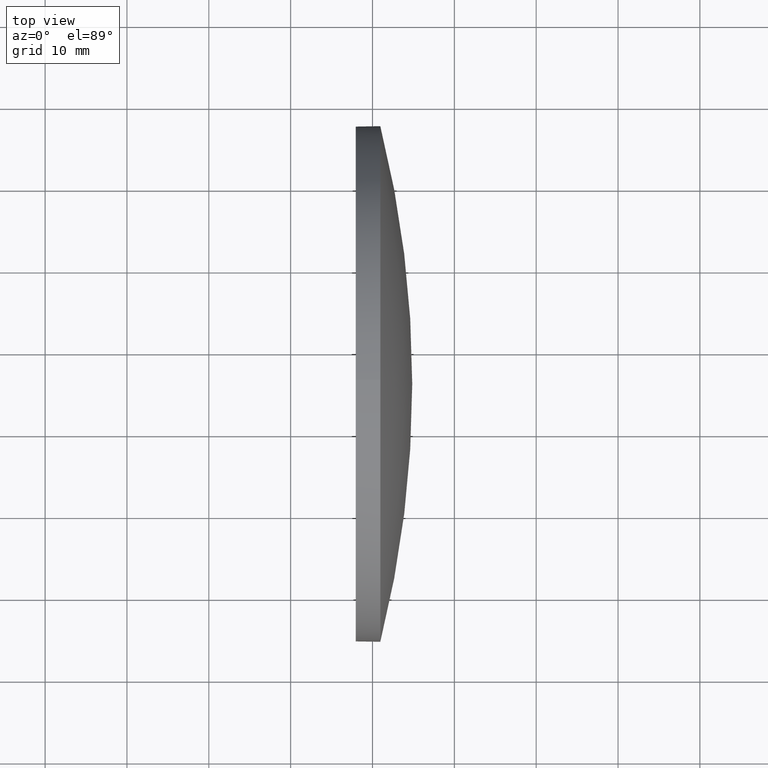
[diagram: clean part render]
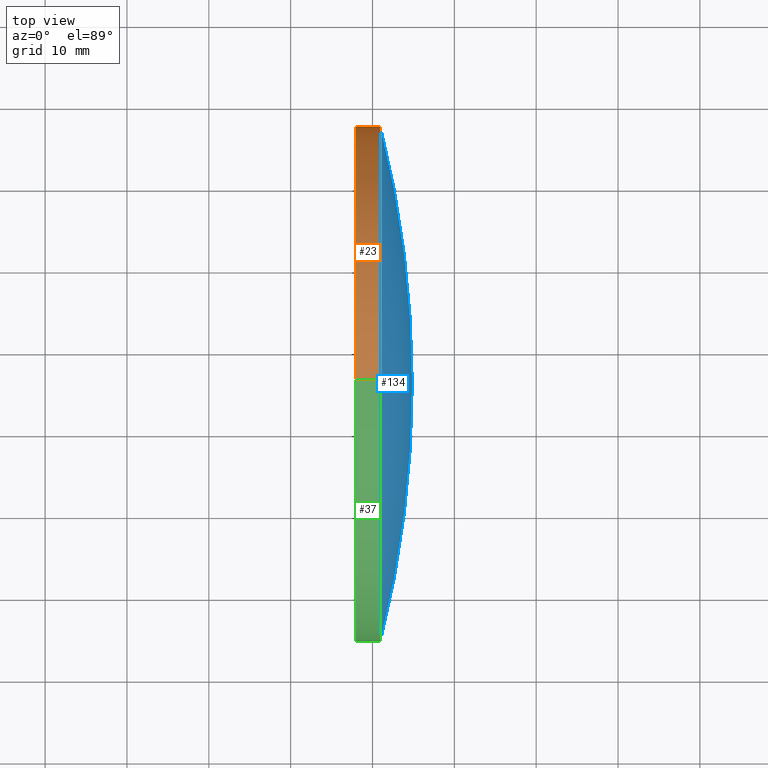
[diagram: same view with three faces highlighted in distinct colors, each labeled with its STEP entity id]
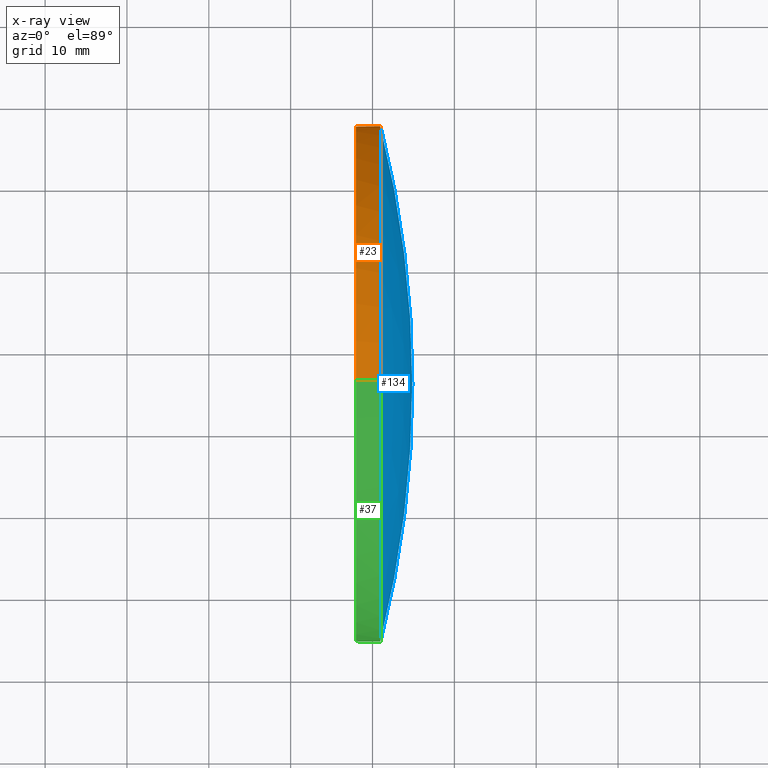
[diagram: x-ray of the same camera — body ghosted, the three highlighted faces saturated]
A machine part, top view with three faces highlighted in distinct colors.
The next image is the same camera in x-ray (body ghosted, the three faces saturated) — at least one of them is partly hidden behind the body in this view.
Their STEP definitions:

[orange] entity #23 — the highlighted cylindrical surface (partial cylindrical patch) has radius 31.5 mm, axis along (-1, -0, -0).
#2 = CIRCLE ( 'NONE', #133, 31.50000000000000000 ) ;
#4 = CARTESIAN_POINT ( 'NONE',  ( 519.9833742792245600, -64.13054328457161500, 31.50000000000000000 ) ) ;
#5 = EDGE_CURVE ( 'NONE', #148, #172, #102, .T. ) ;
#11 = AXIS2_PLACEMENT_3D ( 'NONE', #167, #17, #153 ) ;
#12 = FACE_OUTER_BOUND ( 'NONE', #52, .T. ) ;
#14 = CIRCLE ( 'NONE', #36, 31.50000000000000000 ) ;
#16 = DIRECTION ( 'NONE',  ( -1.000000000000000000, -0.0000000000000000000, -0.0000000000000000000 ) ) ;
#17 = DIRECTION ( 'NONE',  ( -1.000000000000000000, -0.0000000000000000000, -0.0000000000000000000 ) ) ;
#22 = VERTEX_POINT ( 'NONE', #73 ) ;
#23 = ADVANCED_FACE ( 'NONE', ( #12 ), #174, .T. ) ;
#25 = VERTEX_POINT ( 'NONE', #60 ) ;
#27 = CARTESIAN_POINT ( 'NONE',  ( 530.9541059465552700, -64.13054328457161500, 0.0000000000000000000 ) ) ;
#28 = ORIENTED_EDGE ( 'NONE', *, *, #101, .T. ) ;
#31 = CARTESIAN_POINT ( 'NONE',  ( 530.9541059465552700, -64.13054328457161500, 0.0000000000000000000 ) ) ;
#36 = AXIS2_PLACEMENT_3D ( 'NONE', #27, #111, #76 ) ;
#42 = LINE ( 'NONE', #181, #105 ) ;
#44 = CARTESIAN_POINT ( 'NONE',  ( 530.9541059465552700, -64.13054328457161500, -31.50000000000000000 ) ) ;
#50 = DIRECTION ( 'NONE',  ( -1.000000000000000000, -0.0000000000000000000, -0.0000000000000000000 ) ) ;
#52 = EDGE_LOOP ( 'NONE', ( #176, #115, #152, #125, #28 ) ) ;
#59 = CARTESIAN_POINT ( 'NONE',  ( 530.9541059465552700, -64.13054328457161500, 31.50000000000000000 ) ) ;
#60 = CARTESIAN_POINT ( 'NONE',  ( 527.9541059465552700, -64.13054328457161500, -31.50000000000000000 ) ) ;
#61 = AXIS2_PLACEMENT_3D ( 'NONE', #31, #50, #161 ) ;
#73 = CARTESIAN_POINT ( 'NONE',  ( 530.9541059465552700, -32.63054328457162300, 0.0000000000000000000 ) ) ;
#75 = DIRECTION ( 'NONE',  ( -1.000000000000000000, -0.0000000000000000000, -0.0000000000000000000 ) ) ;
#76 = DIRECTION ( 'NONE',  ( 0.0000000000000000000, 0.0000000000000000000, 1.000000000000000000 ) ) ;
#97 = CARTESIAN_POINT ( 'NONE',  ( 527.9541059465552700, -64.13054328457161500, 31.50000000000000000 ) ) ;
#101 = EDGE_CURVE ( 'NONE', #148, #22, #14, .T. ) ;
#102 = LINE ( 'NONE', #4, #156 ) ;
#104 = EDGE_CURVE ( 'NONE', #142, #25, #42, .T. ) ;
#105 = VECTOR ( 'NONE', #75, 1000.000000000000000 ) ;
#106 = CARTESIAN_POINT ( 'NONE',  ( 527.9541059465552700, -64.13054328457161500, 0.0000000000000000000 ) ) ;
#109 = DIRECTION ( 'NONE',  ( -1.000000000000000000, -0.0000000000000000000, -0.0000000000000000000 ) ) ;
#111 = DIRECTION ( 'NONE',  ( -1.000000000000000000, -0.0000000000000000000, -0.0000000000000000000 ) ) ;
#115 = ORIENTED_EDGE ( 'NONE', *, *, #104, .T. ) ;
#118 = CIRCLE ( 'NONE', #61, 31.50000000000000000 ) ;
#120 = EDGE_CURVE ( 'NONE', #172, #25, #2, .T. ) ;
#125 = ORIENTED_EDGE ( 'NONE', *, *, #5, .F. ) ;
#126 = DIRECTION ( 'NONE',  ( 0.0000000000000000000, 0.0000000000000000000, 1.000000000000000000 ) ) ;
#133 = AXIS2_PLACEMENT_3D ( 'NONE', #106, #16, #126 ) ;
#142 = VERTEX_POINT ( 'NONE', #44 ) ;
#148 = VERTEX_POINT ( 'NONE', #59 ) ;
#152 = ORIENTED_EDGE ( 'NONE', *, *, #120, .F. ) ;
#153 = DIRECTION ( 'NONE',  ( 0.0000000000000000000, 0.0000000000000000000, 1.000000000000000000 ) ) ;
#156 = VECTOR ( 'NONE', #109, 1000.000000000000000 ) ;
#161 = DIRECTION ( 'NONE',  ( 0.0000000000000000000, 0.0000000000000000000, 1.000000000000000000 ) ) ;
#167 = CARTESIAN_POINT ( 'NONE',  ( 519.9833742792245600, -64.13054328457161500, 0.0000000000000000000 ) ) ;
#172 = VERTEX_POINT ( 'NONE', #97 ) ;
#174 = CYLINDRICAL_SURFACE ( 'NONE', #11, 31.50000000000000000 ) ;
#176 = ORIENTED_EDGE ( 'NONE', *, *, #177, .T. ) ;
#177 = EDGE_CURVE ( 'NONE', #22, #142, #118, .T. ) ;
#181 = CARTESIAN_POINT ( 'NONE',  ( 519.9833742792245600, -64.13054328457161500, -31.50000000000000000 ) ) ;

[blue] entity #134 — the highlighted spherical surface has radius 129.161 mm.
#3 = EDGE_LOOP ( 'NONE', ( #139, #184, #10, #58 ) ) ;
#6 = CARTESIAN_POINT ( 'NONE',  ( 530.9541059465552700, -95.63054328457163000, -3.857637417314161900E-015 ) ) ;
#10 = ORIENTED_EDGE ( 'NONE', *, *, #101, .F. ) ;
#14 = CIRCLE ( 'NONE', #36, 31.50000000000000000 ) ;
#15 = DIRECTION ( 'NONE',  ( -0.0000000000000000000, 0.0000000000000000000, -1.000000000000000000 ) ) ;
#18 = CARTESIAN_POINT ( 'NONE',  ( 534.8541059465552500, -64.13054328457161500, 0.0000000000000000000 ) ) ;
#19 = CARTESIAN_POINT ( 'NONE',  ( 405.6925674850170400, -64.13054328457163000, 0.0000000000000000000 ) ) ;
#22 = VERTEX_POINT ( 'NONE', #73 ) ;
#27 = CARTESIAN_POINT ( 'NONE',  ( 530.9541059465552700, -64.13054328457161500, 0.0000000000000000000 ) ) ;
#35 = FACE_OUTER_BOUND ( 'NONE', #3, .T. ) ;
#36 = AXIS2_PLACEMENT_3D ( 'NONE', #27, #111, #76 ) ;
#48 = CARTESIAN_POINT ( 'NONE',  ( 405.6925674850170400, -64.13054328457163000, 0.0000000000000000000 ) ) ;
#49 = DIRECTION ( 'NONE',  ( -1.000000000000000000, -0.0000000000000000000, -0.0000000000000000000 ) ) ;
#53 = AXIS2_PLACEMENT_3D ( 'NONE', #48, #62, #168 ) ;
#58 = ORIENTED_EDGE ( 'NONE', *, *, #185, .F. ) ;
#59 = CARTESIAN_POINT ( 'NONE',  ( 530.9541059465552700, -64.13054328457161500, 31.50000000000000000 ) ) ;
#62 = DIRECTION ( 'NONE',  ( 0.0000000000000000000, 1.224646799147353200E-016, -1.000000000000000000 ) ) ;
#70 = CIRCLE ( 'NONE', #108, 129.1615384615382100 ) ;
#72 = EDGE_CURVE ( 'NONE', #99, #22, #70, .T. ) ;
#73 = CARTESIAN_POINT ( 'NONE',  ( 530.9541059465552700, -32.63054328457162300, 0.0000000000000000000 ) ) ;
#76 = DIRECTION ( 'NONE',  ( 0.0000000000000000000, 0.0000000000000000000, 1.000000000000000000 ) ) ;
#80 = SPHERICAL_SURFACE ( 'NONE', #141, 129.1615384615382100 ) ;
#90 = DIRECTION ( 'NONE',  ( -0.0000000000000000000, 0.0000000000000000000, 1.000000000000000000 ) ) ;
#93 = EDGE_CURVE ( 'NONE', #99, #107, #124, .T. ) ;
#96 = CARTESIAN_POINT ( 'NONE',  ( 530.9541059465552700, -64.13054328457161500, 0.0000000000000000000 ) ) ;
#99 = VERTEX_POINT ( 'NONE', #18 ) ;
#101 = EDGE_CURVE ( 'NONE', #148, #22, #14, .T. ) ;
#103 = CIRCLE ( 'NONE', #137, 31.50000000000000000 ) ;
#107 = VERTEX_POINT ( 'NONE', #6 ) ;
#108 = AXIS2_PLACEMENT_3D ( 'NONE', #19, #90, #144 ) ;
#111 = DIRECTION ( 'NONE',  ( -1.000000000000000000, -0.0000000000000000000, -0.0000000000000000000 ) ) ;
#124 = CIRCLE ( 'NONE', #53, 129.1615384615382100 ) ;
#134 = ADVANCED_FACE ( 'NONE', ( #35 ), #80, .T. ) ;
#137 = AXIS2_PLACEMENT_3D ( 'NONE', #96, #49, #173 ) ;
#139 = ORIENTED_EDGE ( 'NONE', *, *, #93, .F. ) ;
#140 = DIRECTION ( 'NONE',  ( 0.0000000000000000000, 1.000000000000000000, 0.0000000000000000000 ) ) ;
#141 = AXIS2_PLACEMENT_3D ( 'NONE', #179, #15, #140 ) ;
#144 = DIRECTION ( 'NONE',  ( 1.000000000000000000, 0.0000000000000000000, 0.0000000000000000000 ) ) ;
#148 = VERTEX_POINT ( 'NONE', #59 ) ;
#168 = DIRECTION ( 'NONE',  ( 0.0000000000000000000, 1.000000000000000000, 1.224646799147353000E-016 ) ) ;
#173 = DIRECTION ( 'NONE',  ( 0.0000000000000000000, 0.0000000000000000000, 1.000000000000000000 ) ) ;
#179 = CARTESIAN_POINT ( 'NONE',  ( 405.6925674850170400, -64.13054328457163000, 0.0000000000000000000 ) ) ;
#184 = ORIENTED_EDGE ( 'NONE', *, *, #72, .T. ) ;
#185 = EDGE_CURVE ( 'NONE', #107, #148, #103, .T. ) ;

[green] entity #37 — the highlighted cylindrical surface (partial cylindrical patch) has radius 31.5 mm, axis along (-1, -0, -0).
#4 = CARTESIAN_POINT ( 'NONE',  ( 519.9833742792245600, -64.13054328457161500, 31.50000000000000000 ) ) ;
#5 = EDGE_CURVE ( 'NONE', #148, #172, #102, .T. ) ;
#6 = CARTESIAN_POINT ( 'NONE',  ( 530.9541059465552700, -95.63054328457163000, -3.857637417314161900E-015 ) ) ;
#25 = VERTEX_POINT ( 'NONE', #60 ) ;
#32 = CIRCLE ( 'NONE', #41, 31.50000000000000000 ) ;
#37 = ADVANCED_FACE ( 'NONE', ( #98 ), #117, .T. ) ;
#40 = ORIENTED_EDGE ( 'NONE', *, *, #5, .T. ) ;
#41 = AXIS2_PLACEMENT_3D ( 'NONE', #110, #157, #158 ) ;
#42 = LINE ( 'NONE', #181, #105 ) ;
#44 = CARTESIAN_POINT ( 'NONE',  ( 530.9541059465552700, -64.13054328457161500, -31.50000000000000000 ) ) ;
#49 = DIRECTION ( 'NONE',  ( -1.000000000000000000, -0.0000000000000000000, -0.0000000000000000000 ) ) ;
#51 = CIRCLE ( 'NONE', #57, 31.50000000000000000 ) ;
#57 = AXIS2_PLACEMENT_3D ( 'NONE', #114, #183, #64 ) ;
#59 = CARTESIAN_POINT ( 'NONE',  ( 530.9541059465552700, -64.13054328457161500, 31.50000000000000000 ) ) ;
#60 = CARTESIAN_POINT ( 'NONE',  ( 527.9541059465552700, -64.13054328457161500, -31.50000000000000000 ) ) ;
#64 = DIRECTION ( 'NONE',  ( 0.0000000000000000000, 0.0000000000000000000, 1.000000000000000000 ) ) ;
#71 = ORIENTED_EDGE ( 'NONE', *, *, #86, .T. ) ;
#75 = DIRECTION ( 'NONE',  ( -1.000000000000000000, -0.0000000000000000000, -0.0000000000000000000 ) ) ;
#81 = ORIENTED_EDGE ( 'NONE', *, *, #150, .F. ) ;
#85 = EDGE_LOOP ( 'NONE', ( #186, #71, #119, #40, #81 ) ) ;
#86 = EDGE_CURVE ( 'NONE', #142, #107, #32, .T. ) ;
#91 = DIRECTION ( 'NONE',  ( -1.000000000000000000, -0.0000000000000000000, -0.0000000000000000000 ) ) ;
#95 = DIRECTION ( 'NONE',  ( 0.0000000000000000000, 0.0000000000000000000, 1.000000000000000000 ) ) ;
#96 = CARTESIAN_POINT ( 'NONE',  ( 530.9541059465552700, -64.13054328457161500, 0.0000000000000000000 ) ) ;
#97 = CARTESIAN_POINT ( 'NONE',  ( 527.9541059465552700, -64.13054328457161500, 31.50000000000000000 ) ) ;
#98 = FACE_OUTER_BOUND ( 'NONE', #85, .T. ) ;
#102 = LINE ( 'NONE', #4, #156 ) ;
#103 = CIRCLE ( 'NONE', #137, 31.50000000000000000 ) ;
#104 = EDGE_CURVE ( 'NONE', #142, #25, #42, .T. ) ;
#105 = VECTOR ( 'NONE', #75, 1000.000000000000000 ) ;
#107 = VERTEX_POINT ( 'NONE', #6 ) ;
#109 = DIRECTION ( 'NONE',  ( -1.000000000000000000, -0.0000000000000000000, -0.0000000000000000000 ) ) ;
#110 = CARTESIAN_POINT ( 'NONE',  ( 530.9541059465552700, -64.13054328457161500, 0.0000000000000000000 ) ) ;
#114 = CARTESIAN_POINT ( 'NONE',  ( 527.9541059465552700, -64.13054328457161500, 0.0000000000000000000 ) ) ;
#116 = AXIS2_PLACEMENT_3D ( 'NONE', #128, #91, #95 ) ;
#117 = CYLINDRICAL_SURFACE ( 'NONE', #116, 31.50000000000000000 ) ;
#119 = ORIENTED_EDGE ( 'NONE', *, *, #185, .T. ) ;
#128 = CARTESIAN_POINT ( 'NONE',  ( 519.9833742792245600, -64.13054328457161500, 0.0000000000000000000 ) ) ;
#137 = AXIS2_PLACEMENT_3D ( 'NONE', #96, #49, #173 ) ;
#142 = VERTEX_POINT ( 'NONE', #44 ) ;
#148 = VERTEX_POINT ( 'NONE', #59 ) ;
#150 = EDGE_CURVE ( 'NONE', #25, #172, #51, .T. ) ;
#156 = VECTOR ( 'NONE', #109, 1000.000000000000000 ) ;
#157 = DIRECTION ( 'NONE',  ( -1.000000000000000000, -0.0000000000000000000, -0.0000000000000000000 ) ) ;
#158 = DIRECTION ( 'NONE',  ( 0.0000000000000000000, 0.0000000000000000000, 1.000000000000000000 ) ) ;
#172 = VERTEX_POINT ( 'NONE', #97 ) ;
#173 = DIRECTION ( 'NONE',  ( 0.0000000000000000000, 0.0000000000000000000, 1.000000000000000000 ) ) ;
#181 = CARTESIAN_POINT ( 'NONE',  ( 519.9833742792245600, -64.13054328457161500, -31.50000000000000000 ) ) ;
#183 = DIRECTION ( 'NONE',  ( -1.000000000000000000, -0.0000000000000000000, -0.0000000000000000000 ) ) ;
#185 = EDGE_CURVE ( 'NONE', #107, #148, #103, .T. ) ;
#186 = ORIENTED_EDGE ( 'NONE', *, *, #104, .F. ) ;